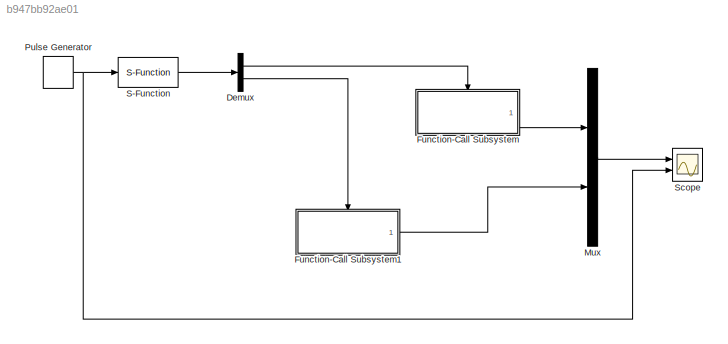
MODEL slx_b947bb92ae01
KIND model
CONFIG AbsTol = auto
CONFIG FixedStep = auto
CONFIG MaxStep = auto
CONFIG MinStep = auto
CONFIG RelTol = 1e-3
CONFIG SampleTimeConstraint = Unconstrained
CONFIG Solver = VariableStepAuto
CONFIG SolverMode = Auto
CONFIG SolverName = VariableStepAuto
CONFIG StartTime = 0.0
CONFIG StopTime = 10.0
BLOCK [Demux] Demux
  DisplayOption = bar
  Outputs = 2
  Ports = [1, 2]
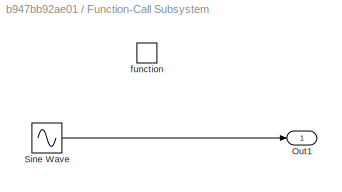
BLOCK [SubSystem] Function-Call Subsystem
  Ports = [0, 1, 0, 1]
  RequestExecContextInheritance = off
  TreatAsAtomicUnit = on
  Variant = off
BLOCK [Outport] Function-Call Subsystem/Out1
  IconDisplay = Port number
BLOCK [Sin] Function-Call Subsystem/Sine Wave
  Ports = [0, 1]
  SampleTime = 0
BLOCK [TriggerPort] Function-Call Subsystem/function
  Ports = []
  StatesWhenEnabling = held
  TriggerType = function-call
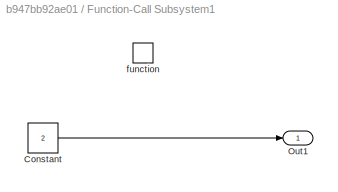
BLOCK [SubSystem] Function-Call Subsystem1
  Ports = [0, 1, 0, 1]
  RequestExecContextInheritance = off
  TreatAsAtomicUnit = on
  Variant = off
BLOCK [Constant] Function-Call Subsystem1/Constant
  Value = 2
BLOCK [Outport] Function-Call Subsystem1/Out1
  IconDisplay = Port number
BLOCK [TriggerPort] Function-Call Subsystem1/function
  Ports = []
  StatesWhenEnabling = held
  TriggerType = function-call
BLOCK [Mux] Mux
  DisplayOption = bar
  Inputs = 2
  Ports = [2, 1]
BLOCK [DiscretePulseGenerator] Pulse Generator
  Ports = [0, 1]
  PulseType = Time based
  PulseWidth = 50
BLOCK [S-Function] S-Function
  EnableBusSupport = off
  FunctionName = sfun_funcall
  Ports = [1, 1]
  SFunctionDeploymentMode = off
BLOCK [Scope] Scope
  NumInputPorts = 2
  Ports = [2]
  ScopeSpecificationString = Simulink.scopes.TimeScopeBlockCfg('CurrentConfiguration', extmgr.ConfigurationSet(extmgr.Configuration('Core','General UI',true),extmgr.Configuration('Core','Source UI',true),extmgr.Configuration('Sources','WiredSimulink',true),extmgr.Configuration('Visuals','Time Domain',true,'SerializedDisplays',{struct('MinYLimReal','-10','MaxYLimReal','10','YLabelReal','','MinYLimMag','0','MaxYLimMag','10','Le...<+2053ch>
LINE Demux:1 -> Function-Call Subsystem:trigger
LINE Demux:2 -> Function-Call Subsystem1:trigger
LINE Function-Call Subsystem/Sine Wave:1 -> Function-Call Subsystem/Out1:1
LINE Function-Call Subsystem1/Constant:1 -> Function-Call Subsystem1/Out1:1
LINE Function-Call Subsystem1:1 -> Mux:2
LINE Function-Call Subsystem:1 -> Mux:1
LINE Mux:1 -> Scope:1
NET Pulse Generator:1 -> S-Function:1, Scope:2
LINE S-Function:1 -> Demux:1
note: NET lines group one-source signal fan-out (src -> all destinations, sorted); 1:1 wires keep LINE
